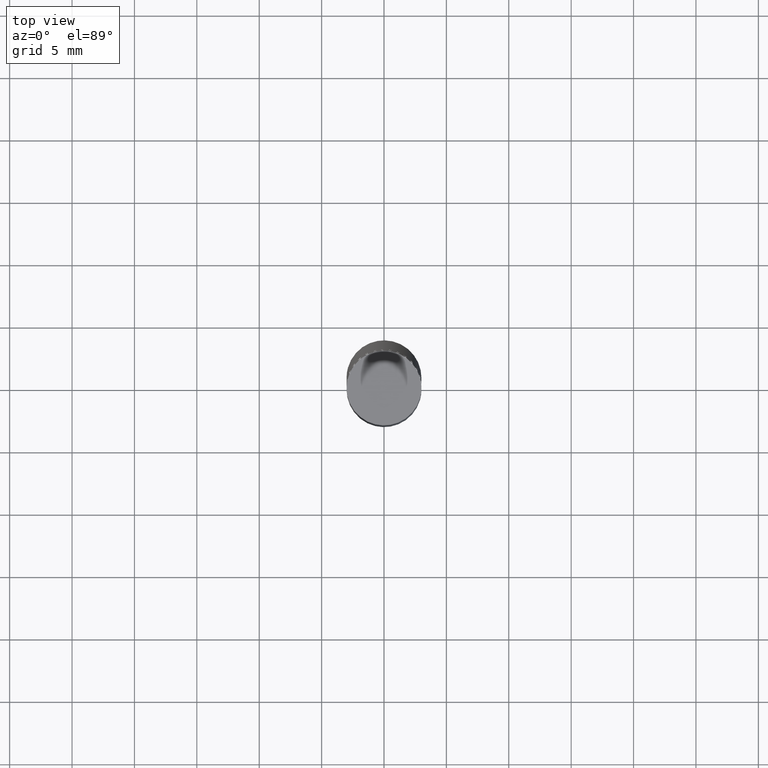
[diagram: clean part render]
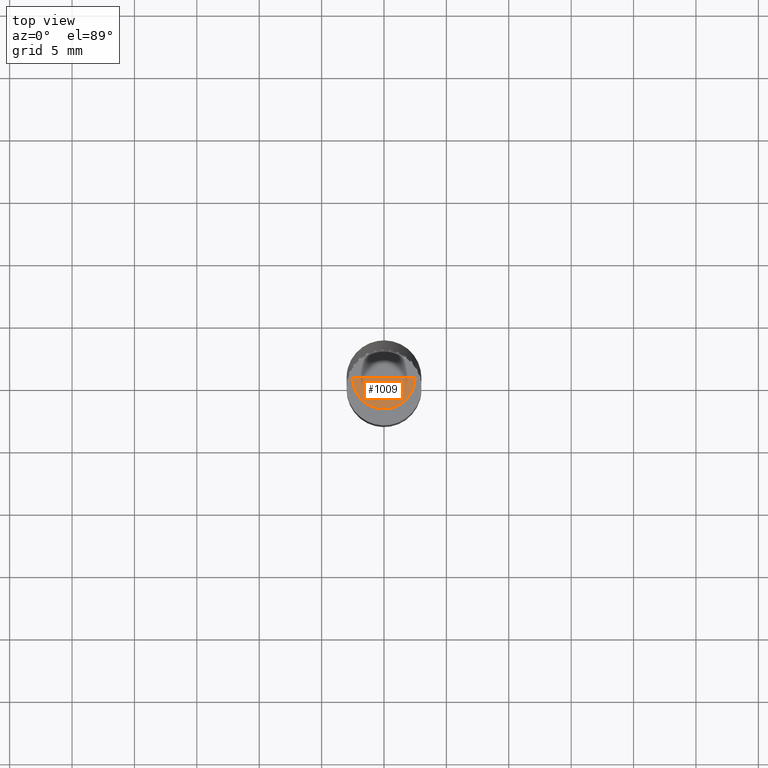
[diagram: same view with one face highlighted and labeled with its STEP entity id]
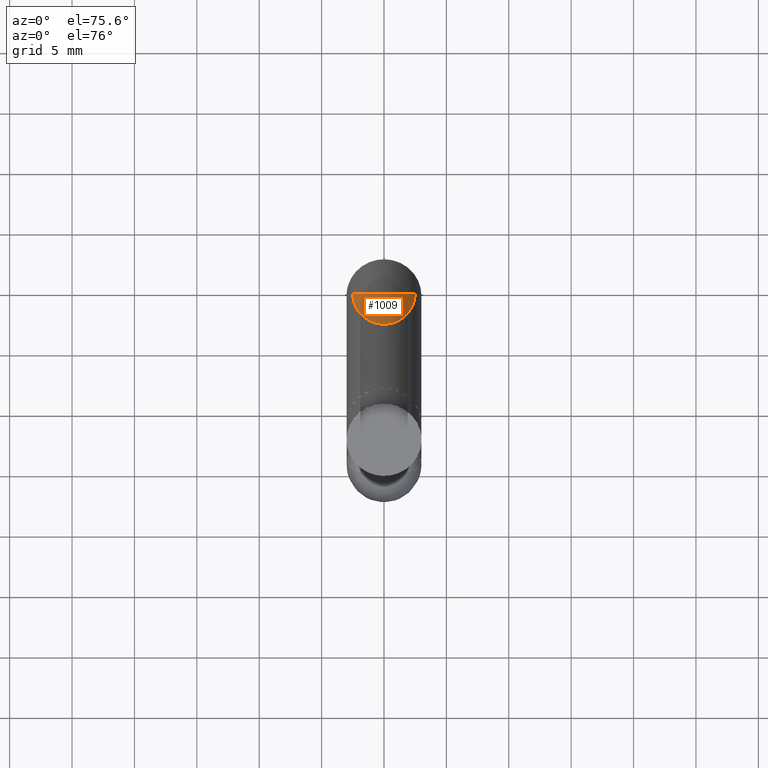
[diagram: same view with one face highlighted and labeled with its STEP entity id]
A machine part, top view. The second image highlights one B-rep face of the part: STEP entity #1009.
A second angle (auxiliary view) of the same face is appended — the face is thin or edge-on in the first view.
In plain terms, the highlighted face is a freeform B-spline surface patch.
Its self-contained STEP definition (entity closure, byte-faithful):
#696=CARTESIAN_POINT('',(2.5,0.0,42.0));
#700=CARTESIAN_POINT('',(-2.5,0.0,42.0));
#701=CARTESIAN_POINT('',(0.0,0.0,42.0));
#708=CARTESIAN_POINT('',(-2.5,-2.5,42.0));
#709=CARTESIAN_POINT('',(0.0,-2.5,42.0));
#710=CARTESIAN_POINT('',(2.5,-2.5,42.0));
#994=(
BOUNDED_SURFACE()
B_SPLINE_SURFACE(1,2,(
(#700,#708,#709,#710,#696),
(#701,#701,#701,#701,#701)
), .UNSPECIFIED.,.F.,.F.,.F.)
B_SPLINE_SURFACE_WITH_KNOTS((2,2),(3,2,3),(
0.0,1.0),(
0.0,0.5,1.0), .UNSPECIFIED.)
GEOMETRIC_REPRESENTATION_ITEM()
RATIONAL_B_SPLINE_SURFACE(((1.0,0.707106781187,1.0,0.707106781187,1.0),
(1.0,0.707106781187,1.0,0.707106781187,1.0)
))
REPRESENTATION_ITEM('')
SURFACE()
);
#995=(
BOUNDED_CURVE()
B_SPLINE_CURVE(2,(#696,#710,#709,#708,#700),.UNSPECIFIED.,.F.,.F.)
B_SPLINE_CURVE_WITH_KNOTS((3,2,3),
(0.0,0.5,1.0),.UNSPECIFIED.)
CURVE()
GEOMETRIC_REPRESENTATION_ITEM()
RATIONAL_B_SPLINE_CURVE((1.0,0.707106781187,1.0,0.707106781187,1.0))
REPRESENTATION_ITEM('')
);
#996=(
BOUNDED_CURVE()
B_SPLINE_CURVE(1,(#700,#701),.UNSPECIFIED.,.F.,.F.)
B_SPLINE_CURVE_WITH_KNOTS((2,2),
(0.0,1.0),.UNSPECIFIED.)
CURVE()
GEOMETRIC_REPRESENTATION_ITEM()
RATIONAL_B_SPLINE_CURVE((1.0,1.0))
REPRESENTATION_ITEM('')
);
#997=(
BOUNDED_CURVE()
B_SPLINE_CURVE(1,(#701,#696),.UNSPECIFIED.,.F.,.F.)
B_SPLINE_CURVE_WITH_KNOTS((2,2),
(0.0,1.0),.UNSPECIFIED.)
CURVE()
GEOMETRIC_REPRESENTATION_ITEM()
RATIONAL_B_SPLINE_CURVE((1.0,1.0))
REPRESENTATION_ITEM('')
);
#998=VERTEX_POINT('',#696);
#999=VERTEX_POINT('',#700);
#1000=VERTEX_POINT('',#701);
#1001=EDGE_CURVE('',#998,#999,#995,.T.);
#1002=EDGE_CURVE('',#999,#1000,#996,.T.);
#1003=EDGE_CURVE('',#1000,#998,#997,.T.);
#1004=ORIENTED_EDGE('',*,*,#1001,.T.);
#1005=ORIENTED_EDGE('',*,*,#1002,.T.);
#1006=ORIENTED_EDGE('',*,*,#1003,.T.);
#1007=EDGE_LOOP('',(#1004,#1005,#1006));
#1008=FACE_OUTER_BOUND('',#1007,.T.);
#1009=ADVANCED_FACE('',(#1008),#994,.T.);